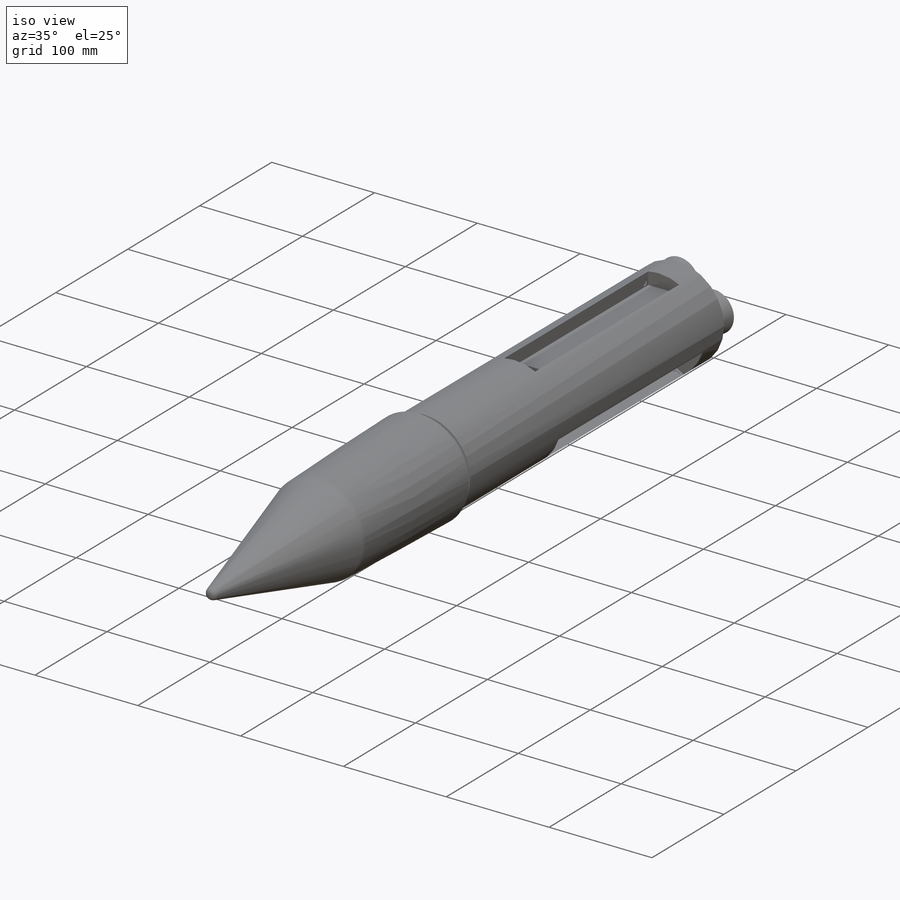
[diagram: iso view]
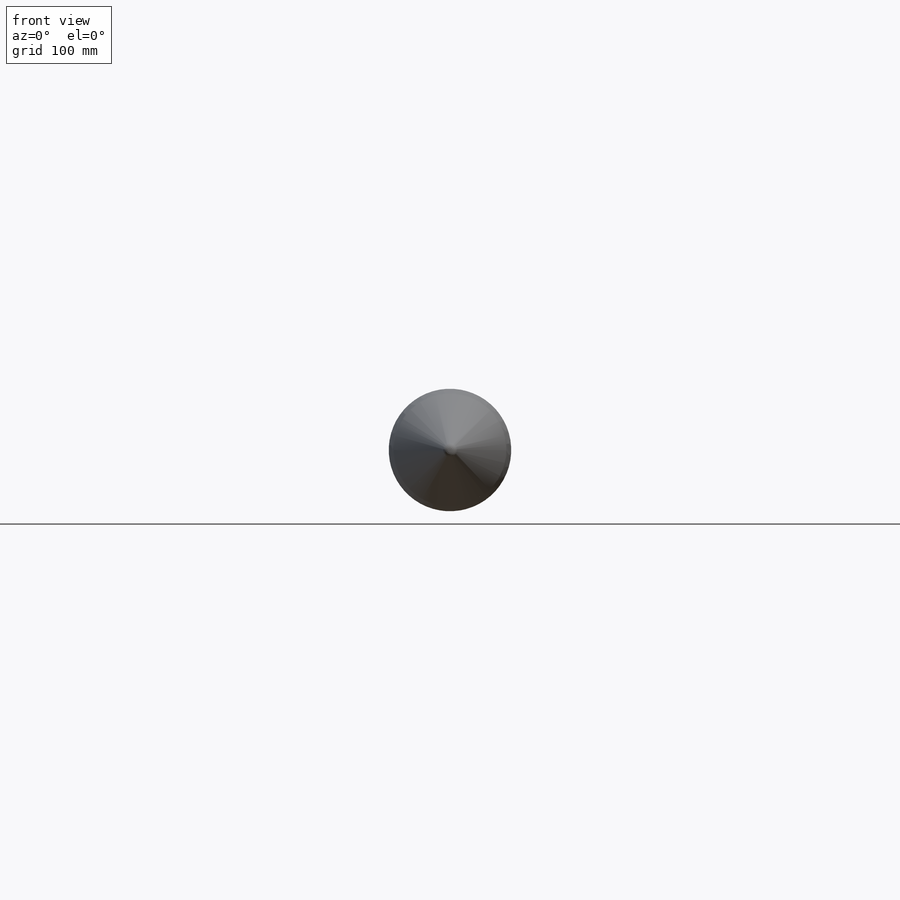
[diagram: front view]
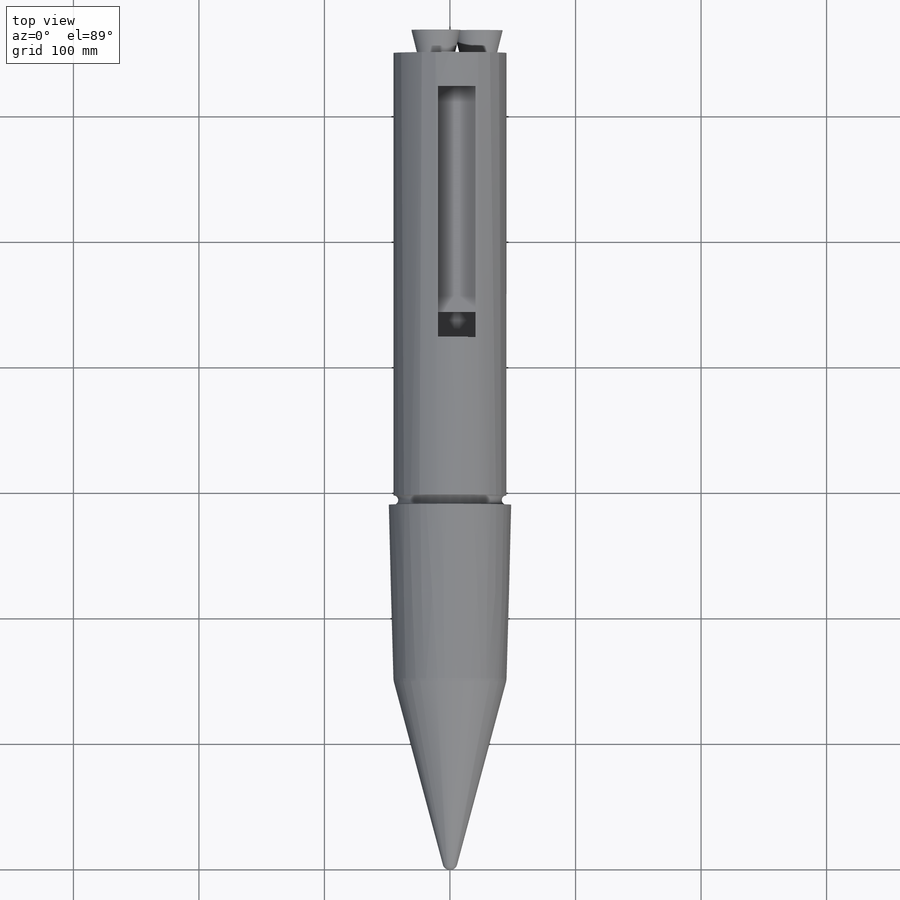
[diagram: top view]
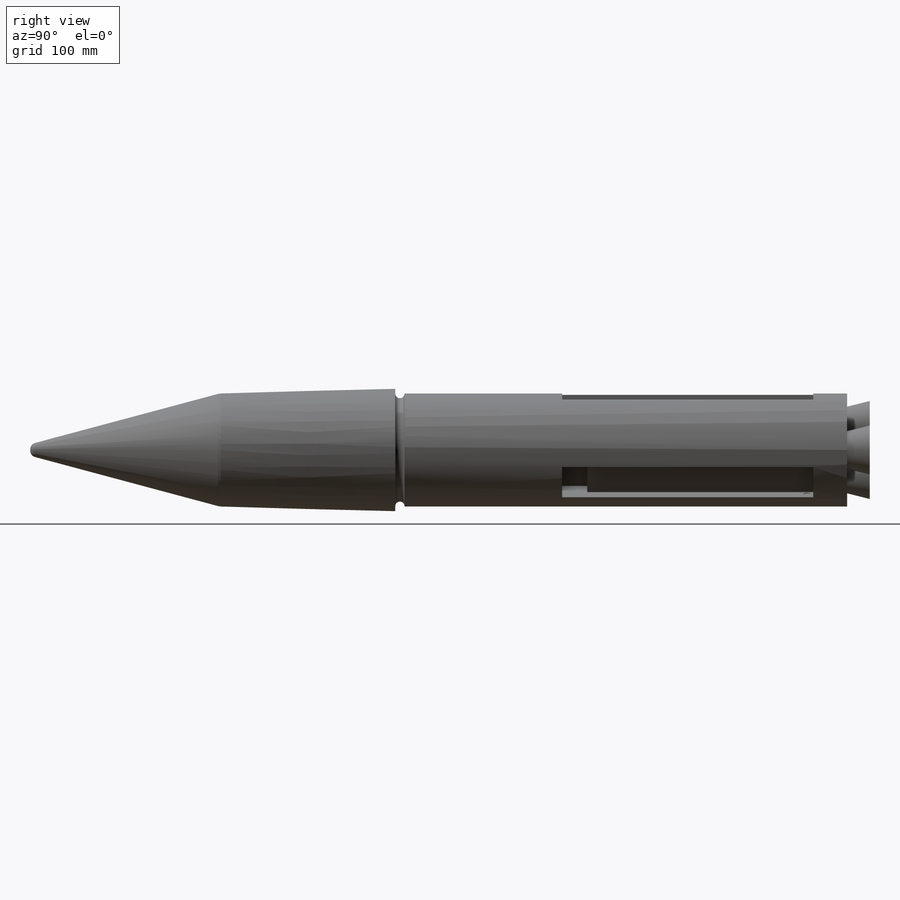
[diagram: right view]
SOLIDWORKS PART (.sldprt)
format: sldprt  version: not decoded by parser v0  size: 497,152 bytes
history: native  units: mm
features: sketch x13, plane x7, cut_extrude x5, extrude x3, delete_body x3, shell x3, material x1, fillet x1, cut_revolve x1, pattern_circular x1 (+13 scaffold rows collapsed)
feature tree (51):
  scaffold x13  (default folders/planes/origin — collapsed)
  material  "材质 <未指定>"
  plane  "前视基准面"
  plane  "上视基准面"
  plane  "右视基准面"
  sketch  "草图1"  dims[D1=100.0mm]
  plane  "基准面1"  Offset=250mm
  plane  "基准面2"  Offset=250mm
  sketch  "草图3"  dims[D1=95.0mm]
  sketch  "草图4"  dims[D1=90.0mm]
  sketch  "草图5"  dims[D1=0.0mm]
  extrude  "凸台-拉伸2"  Depth=500mm
  fillet  "圆角1"  Radius=10mm
  sketch  "草图6"  dims[D1=20.0deg]
  delete_body  "实体-删除1"
  delete_body  "圆角2"
  plane  "基准面4"  Offset=350mm
  sketch  "草图7"  dims[D1=90.0mm]
  cut_extrude  "切除-拉伸1"  Depth=514mm
  sketch  "草图8"  dims[c1.D3=7.4mm c1.D1=5.0mm c1.D2=5.0mm c2.D1=~3.793735mm c2.D2=3.7mm]
  cut_revolve  "切除-旋转3"  Angle=360deg
  sketch  "草图9"  dims[D1=30.0mm D2=30.0mm D3=30.0mm D4=45.0mm]
  extrude  "凸台-拉伸3"  Depth=18mm
  shell  "抽壳1"  Thickness=2mm
  shell  "抽壳2"  Thickness=2mm
  shell  "抽壳3"  Thickness=2mm
  plane  "基准面5"  Offset=50mm
  sketch  "草图10"  dims[D1=200.0mm D2=30.0mm D3=30.0mm]
  cut_extrude  "切除-拉伸3"  Depth=18mm
  sketch  "草图11"  dims[D1=20.0mm]
  cut_extrude  "切除-拉伸4"  Depth=10mm
  sketch  "草图12"  dims[D2=6.0mm D1=5.0mm]
  cut_extrude  "切除-拉伸5"  Depth=0.5mm
  pattern_circular  "阵列(圆周)1"  Count=3 Angle=120deg
  sketch  "草图13"
  cut_extrude  "切除-拉伸6"  Depth=360mm
  sketch  "草图14"
  extrude  "凸台-拉伸4"  Depth=60mm
  delete_body  "圆角3"
decode coverage: 25 of 30 modeling features carry decoded parameters
note: ~ marks probable driven/reference dimensions
note: suppression state not decoded; provenance and decode notes live in map.json
